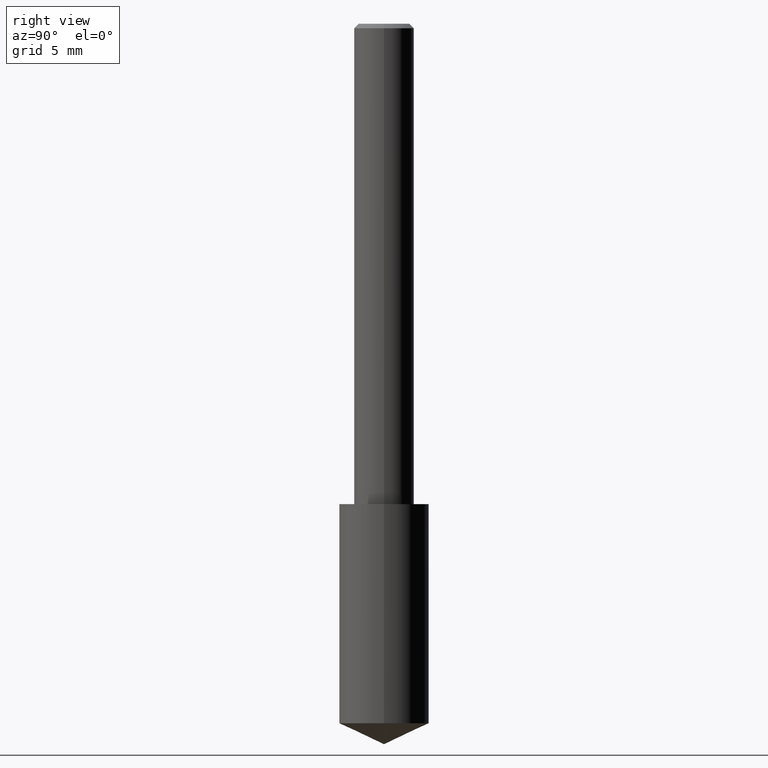
[diagram: clean part render]
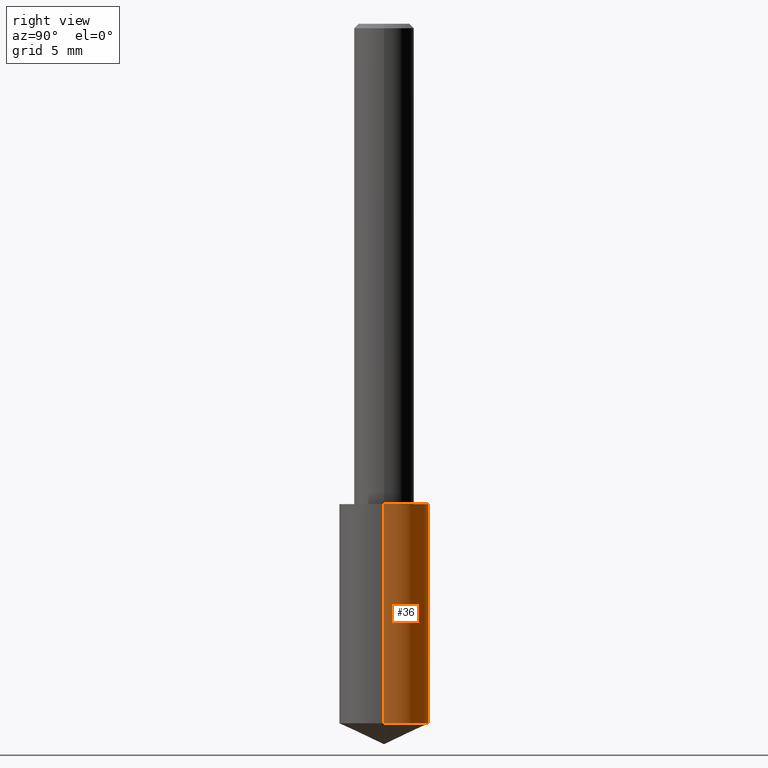
[diagram: same view with one face highlighted and labeled with its STEP entity id]
A machine part, right view. The second image highlights one B-rep face of the part: STEP entity #36.
In plain terms, the highlighted cylindrical surface (partial cylindrical patch) has radius 2.3749 mm, axis along (-0, 0, 1).
Its self-contained STEP definition (entity closure, byte-faithful):
#2 = AXIS2_PLACEMENT_3D ( 'NONE', #210, #87, #301 ) ;
#4 = VERTEX_POINT ( 'NONE', #61 ) ;
#5 = CIRCLE ( 'NONE', #177, 0.09349999999999999978 ) ;
#9 = AXIS2_PLACEMENT_3D ( 'NONE', #111, #305, #189 ) ;
#10 = DIRECTION ( 'NONE',  ( -2.445468806185136877E-29, 3.491481338843145188E-15, 1.000000000000000000 ) ) ;
#11 = CARTESIAN_POINT ( 'NONE',  ( 0.09349999999999998590, -5.737901249130553981E-15, -1.456400233962507951 ) ) ;
#36 = ADVANCED_FACE ( 'NONE', ( #89 ), #147, .T. ) ;
#38 = ORIENTED_EDGE ( 'NONE', *, *, #190, .F. ) ;
#39 = CARTESIAN_POINT ( 'NONE',  ( -0.09349999999999999978, -2.827123880907452502E-15, -1.000000000000000222 ) ) ;
#48 = LINE ( 'NONE', #39, #199 ) ;
#56 = ORIENTED_EDGE ( 'NONE', *, *, #333, .T. ) ;
#61 = CARTESIAN_POINT ( 'NONE',  ( -0.09349999999999999978, -3.623880330869323109E-15, -1.000000000000000222 ) ) ;
#69 = EDGE_CURVE ( 'NONE', #79, #4, #48, .T. ) ;
#77 = ORIENTED_EDGE ( 'NONE', *, *, #96, .F. ) ;
#79 = VERTEX_POINT ( 'NONE', #238 ) ;
#87 = DIRECTION ( 'NONE',  ( -2.445468806185136597E-29, 3.491481338843145583E-15, 1.000000000000000000 ) ) ;
#89 = FACE_OUTER_BOUND ( 'NONE', #229, .T. ) ;
#95 = DIRECTION ( 'NONE',  ( -2.445468806185136877E-29, 3.491481338843145188E-15, 1.000000000000000000 ) ) ;
#96 = EDGE_CURVE ( 'NONE', #292, #4, #113, .T. ) ;
#104 = DIRECTION ( 'NONE',  ( -2.445468806185136597E-29, 3.491481338843145583E-15, 1.000000000000000000 ) ) ;
#111 = CARTESIAN_POINT ( 'NONE',  ( 2.445468806185137438E-29, -3.491481338843146371E-15, -1.000000000000000222 ) ) ;
#113 = CIRCLE ( 'NONE', #2, 0.09349999999999999978 ) ;
#121 = LINE ( 'NONE', #272, #262 ) ;
#147 = CYLINDRICAL_SURFACE ( 'NONE', #9, 0.09349999999999999978 ) ;
#177 = AXIS2_PLACEMENT_3D ( 'NONE', #236, #104, #293 ) ;
#183 = ORIENTED_EDGE ( 'NONE', *, *, #69, .T. ) ;
#189 = DIRECTION ( 'NONE',  ( 1.000000000000000000, -6.982962677686265133E-15, 0.000000000000000000 ) ) ;
#190 = EDGE_CURVE ( 'NONE', #265, #292, #121, .T. ) ;
#199 = VECTOR ( 'NONE', #10, 39.37007874015748143 ) ;
#210 = CARTESIAN_POINT ( 'NONE',  ( 2.445468806185136877E-29, -3.491481338843145977E-15, -1.000000000000000222 ) ) ;
#229 = EDGE_LOOP ( 'NONE', ( #56, #183, #77, #38 ) ) ;
#236 = CARTESIAN_POINT ( 'NONE',  ( 3.561581341476047635E-29, -5.084994238766887980E-15, -1.456400233962507951 ) ) ;
#238 = CARTESIAN_POINT ( 'NONE',  ( -0.09349999999999998590, -4.420636780831194111E-15, -1.456400233962507951 ) ) ;
#257 = CARTESIAN_POINT ( 'NONE',  ( 0.09349999999999999978, -4.144388349206811978E-15, -1.000000000000000222 ) ) ;
#262 = VECTOR ( 'NONE', #95, 39.37007874015748143 ) ;
#265 = VERTEX_POINT ( 'NONE', #11 ) ;
#272 = CARTESIAN_POINT ( 'NONE',  ( 0.09349999999999999978, -4.144388349206811978E-15, -1.000000000000000222 ) ) ;
#292 = VERTEX_POINT ( 'NONE', #257 ) ;
#293 = DIRECTION ( 'NONE',  ( 1.000000000000000000, -6.982962677686265133E-15, 0.000000000000000000 ) ) ;
#301 = DIRECTION ( 'NONE',  ( 1.000000000000000000, -6.982962677686265133E-15, 0.000000000000000000 ) ) ;
#305 = DIRECTION ( 'NONE',  ( -2.445468806185136597E-29, 3.491481338843145583E-15, 1.000000000000000000 ) ) ;
#333 = EDGE_CURVE ( 'NONE', #265, #79, #5, .T. ) ;